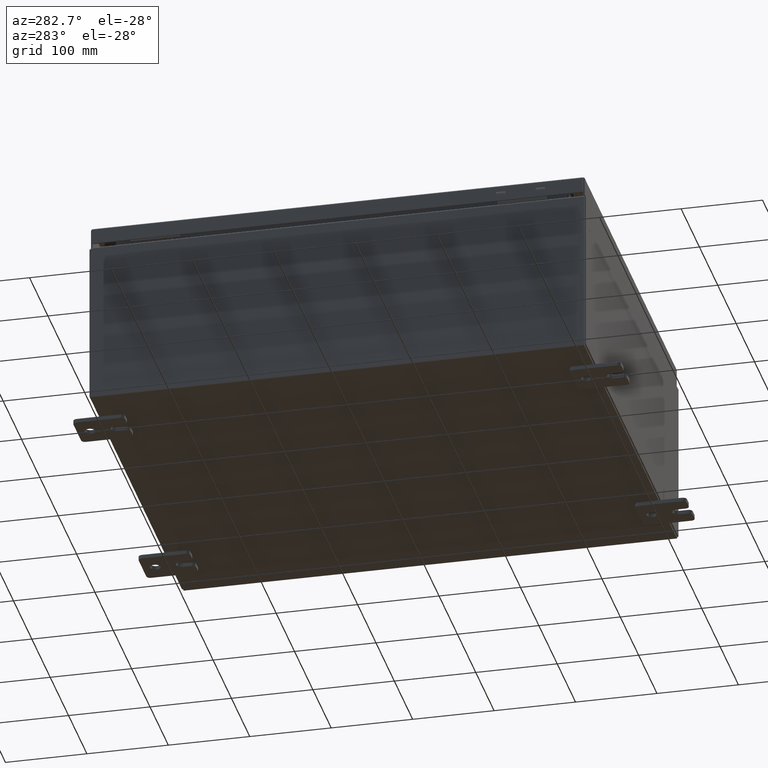
[diagram: clean part render]
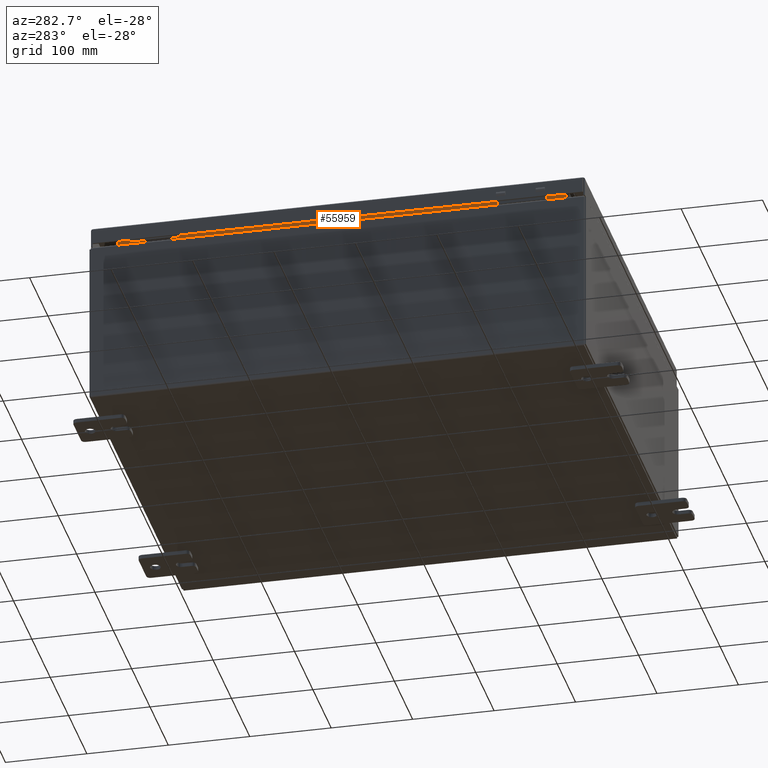
[diagram: same view with one face highlighted and labeled with its STEP entity id]
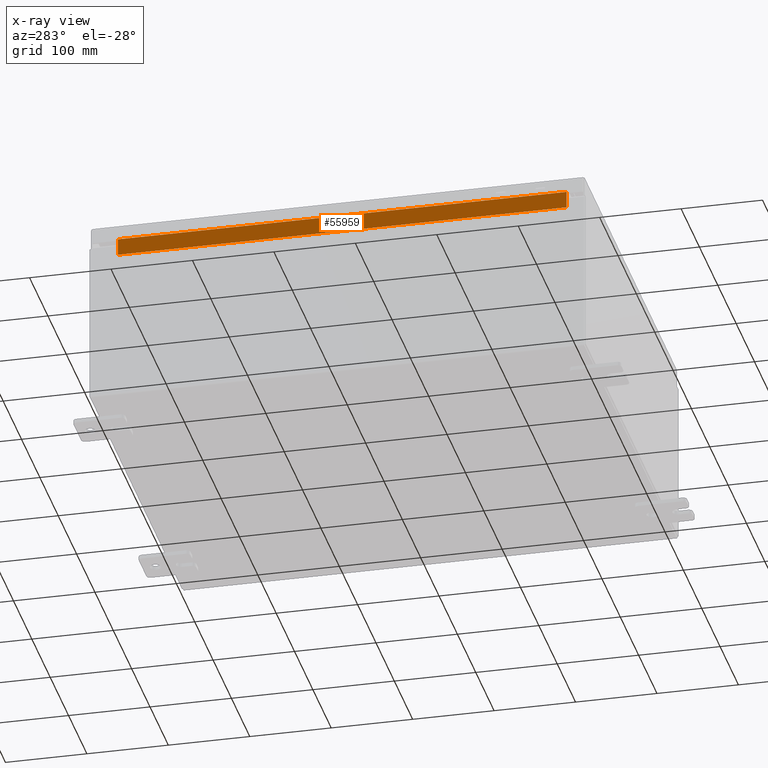
[diagram: x-ray of the same camera — body ghosted, the highlighted face saturated]
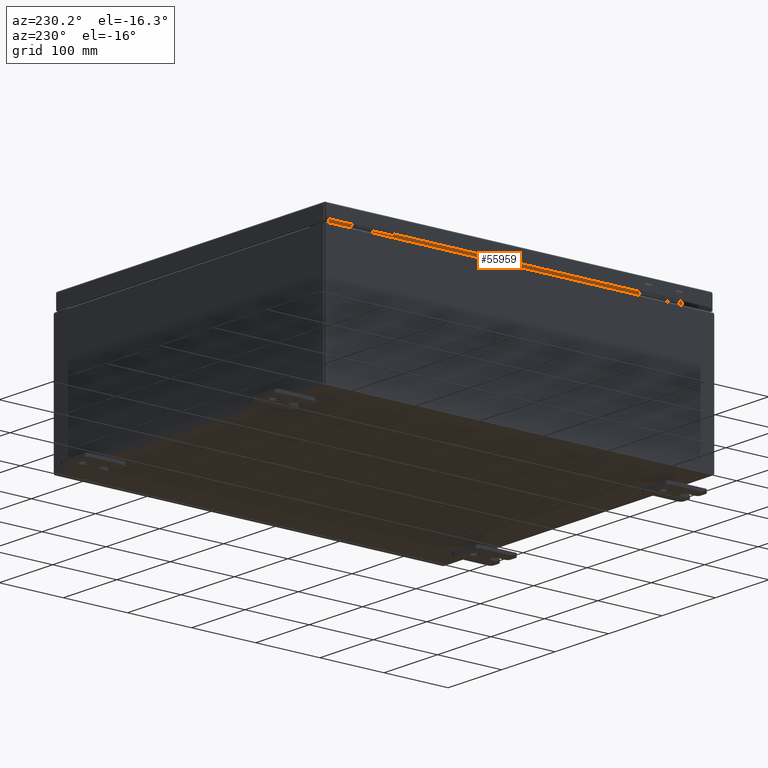
[diagram: same view with one face highlighted and labeled with its STEP entity id]
A machine part, auxiliary view. The second image highlights one B-rep face of the part: STEP entity #55959.
The next image is the same camera in x-ray: the body ghosted, the highlighted face saturated — about 0% of this face is hidden behind the body in this view.
A second angle (auxiliary view) of the same face is appended — the face is thin or edge-on in the first view.
In plain terms, the highlighted planar face has unit normal (-1, 0, -0).
Its self-contained STEP definition (entity closure, byte-faithful):
#1593 = VERTEX_POINT ( 'NONE', #7012 ) ;
#3133 = EDGE_CURVE ( 'NONE', #30055, #35896, #49430, .T. ) ;
#4309 = ORIENTED_EDGE ( 'NONE', *, *, #17329, .F. ) ;
#4390 = CARTESIAN_POINT ( 'NONE',  ( -8.949700000000030200, -10.84374999999999500, 8.762900000000005500 ) ) ;
#4647 = DIRECTION ( 'NONE',  ( -1.000000000000000000, 1.785098742850088300E-031, -3.542869979895298400E-015 ) ) ;
#7012 = CARTESIAN_POINT ( 'NONE',  ( -8.949700000000028400, -10.84374999999999300, 7.938300000000007900 ) ) ;
#10887 = EDGE_CURVE ( 'NONE', #35896, #48738, #47728, .T. ) ;
#17329 = EDGE_CURVE ( 'NONE', #48738, #1593, #23729, .T. ) ;
#18938 = DIRECTION ( 'NONE',  ( 3.542869979895294000E-015, -0.0000000000000000000, -1.000000000000000000 ) ) ;
#19041 = DIRECTION ( 'NONE',  ( -3.542869979895298400E-015, -0.0000000000000000000, 1.000000000000000000 ) ) ;
#19783 = CARTESIAN_POINT ( 'NONE',  ( -8.949700000000028400, 10.84375000000000200, 7.938300000000007900 ) ) ;
#20813 = FACE_OUTER_BOUND ( 'NONE', #30078, .T. ) ;
#23126 = VECTOR ( 'NONE', #63076, 39.37007874015748100 ) ;
#23729 = LINE ( 'NONE', #48348, #48317 ) ;
#23963 = CARTESIAN_POINT ( 'NONE',  ( -8.949700000000032000, 10.84375000000000200, 8.850600000000007100 ) ) ;
#30055 = VERTEX_POINT ( 'NONE', #19783 ) ;
#30078 = EDGE_LOOP ( 'NONE', ( #4309, #48966, #30516, #32581 ) ) ;
#30516 = ORIENTED_EDGE ( 'NONE', *, *, #3133, .F. ) ;
#31144 = CARTESIAN_POINT ( 'NONE',  ( -8.949700000000030200, -10.84374999999999500, 7.938300000000006100 ) ) ;
#32581 = ORIENTED_EDGE ( 'NONE', *, *, #58151, .F. ) ;
#33675 = CARTESIAN_POINT ( 'NONE',  ( -8.949700000000030200, 10.84374999999999800, 8.762900000000005500 ) ) ;
#33963 = CARTESIAN_POINT ( 'NONE',  ( -8.949700000000000000, 1.597609821888543300E-030, -3.170762345906895500E-014 ) ) ;
#35896 = VERTEX_POINT ( 'NONE', #59921 ) ;
#37881 = VECTOR ( 'NONE', #19041, 39.37007874015748100 ) ;
#38916 = DIRECTION ( 'NONE',  ( -3.542869979895298400E-015, 0.0000000000000000000, 1.000000000000000000 ) ) ;
#39132 = LINE ( 'NONE', #31144, #50656 ) ;
#47728 = LINE ( 'NONE', #33675, #23126 ) ;
#48317 = VECTOR ( 'NONE', #18938, 39.37007874015748100 ) ;
#48348 = CARTESIAN_POINT ( 'NONE',  ( -8.949700000000028400, -10.84374999999999500, 7.925300000000006200 ) ) ;
#48738 = VERTEX_POINT ( 'NONE', #4390 ) ;
#48966 = ORIENTED_EDGE ( 'NONE', *, *, #10887, .F. ) ;
#49430 = LINE ( 'NONE', #23963, #37881 ) ;
#50656 = VECTOR ( 'NONE', #50710, 39.37007874015748100 ) ;
#50710 = DIRECTION ( 'NONE',  ( -5.038566904741006500E-017, 1.000000000000000000, 1.007713380948201300E-016 ) ) ;
#55959 = ADVANCED_FACE ( 'NONE', ( #20813 ), #63335, .T. ) ;
#58151 = EDGE_CURVE ( 'NONE', #1593, #30055, #39132, .T. ) ;
#58772 = AXIS2_PLACEMENT_3D ( 'NONE', #33963, #4647, #38916 ) ;
#59921 = CARTESIAN_POINT ( 'NONE',  ( -8.949700000000032000, 10.84375000000000200, 8.762900000000005500 ) ) ;
#63076 = DIRECTION ( 'NONE',  ( -0.0000000000000000000, -1.000000000000000000, -0.0000000000000000000 ) ) ;
#63335 = PLANE ( 'NONE',  #58772 ) ;